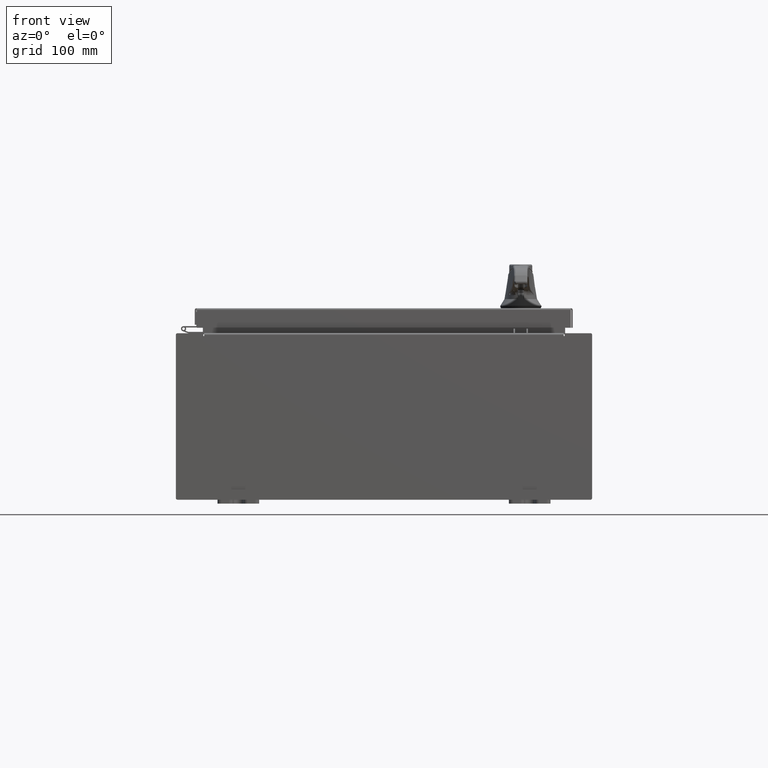
[diagram: clean part render]
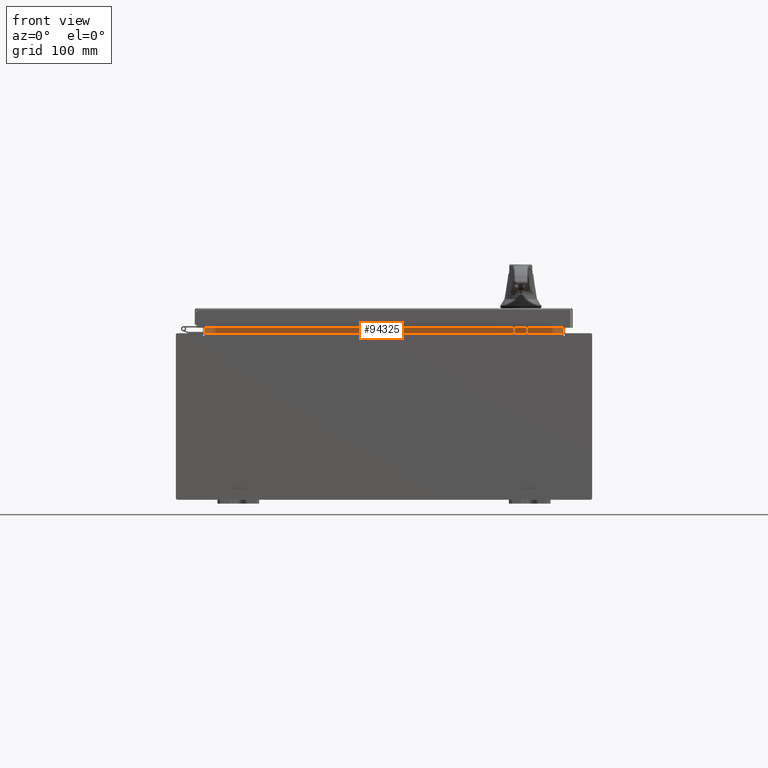
[diagram: same view with one face highlighted and labeled with its STEP entity id]
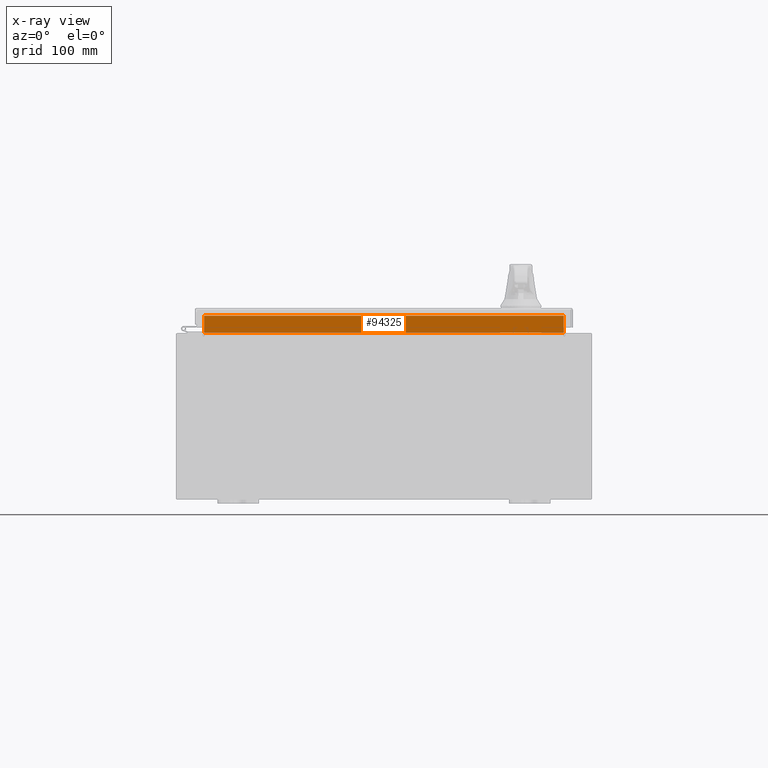
[diagram: x-ray of the same camera — body ghosted, the highlighted face saturated]
A machine part, front view. The second image highlights one B-rep face of the part: STEP entity #94325.
The next image is the same camera in x-ray: the body ghosted, the highlighted face saturated — about 0% of this face is hidden behind the body in this view.
In plain terms, the highlighted planar face has unit normal (0, -1, 0).
Its self-contained STEP definition (entity closure, byte-faithful):
#232 = EDGE_CURVE ( 'NONE', #22716, #101057, #89450, .T. ) ;
#1648 = CARTESIAN_POINT ( 'NONE',  ( 8.637200000000000000, -1.300299999999999300, 4.837600000000003700 ) ) ;
#8510 = CARTESIAN_POINT ( 'NONE',  ( -8.637200000000000000, -1.300299999999999800, 4.013000000000003500 ) ) ;
#9779 = VECTOR ( 'NONE', #29950, 39.37007874015748100 ) ;
#11833 = EDGE_CURVE ( 'NONE', #101057, #33204, #50935, .T. ) ;
#14186 = ORIENTED_EDGE ( 'NONE', *, *, #112620, .F. ) ;
#22716 = VERTEX_POINT ( 'NONE', #34782 ) ;
#25709 = ORIENTED_EDGE ( 'NONE', *, *, #11833, .F. ) ;
#26034 = VERTEX_POINT ( 'NONE', #112776 ) ;
#26213 = FACE_OUTER_BOUND ( 'NONE', #72479, .T. ) ;
#29950 = DIRECTION ( 'NONE',  ( 1.000000000000000000, 0.0000000000000000000, -3.162886113166609200E-017 ) ) ;
#31937 = PLANE ( 'NONE',  #82632 ) ;
#33204 = VERTEX_POINT ( 'NONE', #64506 ) ;
#34782 = CARTESIAN_POINT ( 'NONE',  ( -8.637200000000000000, -1.300299999999999300, 4.837600000000003700 ) ) ;
#36773 = EDGE_CURVE ( 'NONE', #26034, #22716, #37501, .T. ) ;
#37501 = LINE ( 'NONE', #1648, #40234 ) ;
#40234 = VECTOR ( 'NONE', #106611, 39.37007874015748100 ) ;
#40736 = DIRECTION ( 'NONE',  ( 0.0000000000000000000, 1.000000000000000000, 0.0000000000000000000 ) ) ;
#44132 = DIRECTION ( 'NONE',  ( -0.0000000000000000000, -0.0000000000000000000, -1.000000000000000000 ) ) ;
#45847 = VECTOR ( 'NONE', #44132, 39.37007874015748100 ) ;
#50935 = LINE ( 'NONE', #60060, #9779 ) ;
#60060 = CARTESIAN_POINT ( 'NONE',  ( -8.637200000000000000, -1.300299999999999800, 4.013000000000003500 ) ) ;
#64506 = CARTESIAN_POINT ( 'NONE',  ( 8.637199999999996400, -1.300299999999999800, 4.013000000000003500 ) ) ;
#65729 = VECTOR ( 'NONE', #79122, 39.37007874015748100 ) ;
#70402 = CARTESIAN_POINT ( 'NONE',  ( 8.637200000000000000, -1.300299999999999800, 4.925300000000004500 ) ) ;
#72479 = EDGE_LOOP ( 'NONE', ( #110834, #84292, #14186, #25709 ) ) ;
#79122 = DIRECTION ( 'NONE',  ( -0.0000000000000000000, -0.0000000000000000000, 1.000000000000000000 ) ) ;
#82632 = AXIS2_PLACEMENT_3D ( 'NONE', #83719, #40736, #101826 ) ;
#83719 = CARTESIAN_POINT ( 'NONE',  ( 0.0000000000000000000, -1.300299999999999800, 0.0000000000000000000 ) ) ;
#84292 = ORIENTED_EDGE ( 'NONE', *, *, #36773, .F. ) ;
#89450 = LINE ( 'NONE', #106386, #45847 ) ;
#94325 = ADVANCED_FACE ( 'NONE', ( #26213 ), #31937, .T. ) ;
#101057 = VERTEX_POINT ( 'NONE', #8510 ) ;
#101826 = DIRECTION ( 'NONE',  ( 0.0000000000000000000, -0.0000000000000000000, 1.000000000000000000 ) ) ;
#106386 = CARTESIAN_POINT ( 'NONE',  ( -8.637200000000000000, -1.300299999999999800, 4.000000000000004400 ) ) ;
#106611 = DIRECTION ( 'NONE',  ( -1.000000000000000000, -0.0000000000000000000, -0.0000000000000000000 ) ) ;
#110834 = ORIENTED_EDGE ( 'NONE', *, *, #232, .F. ) ;
#112291 = LINE ( 'NONE', #70402, #65729 ) ;
#112620 = EDGE_CURVE ( 'NONE', #33204, #26034, #112291, .T. ) ;
#112776 = CARTESIAN_POINT ( 'NONE',  ( 8.637200000000000000, -1.300299999999999800, 4.837600000000003700 ) ) ;